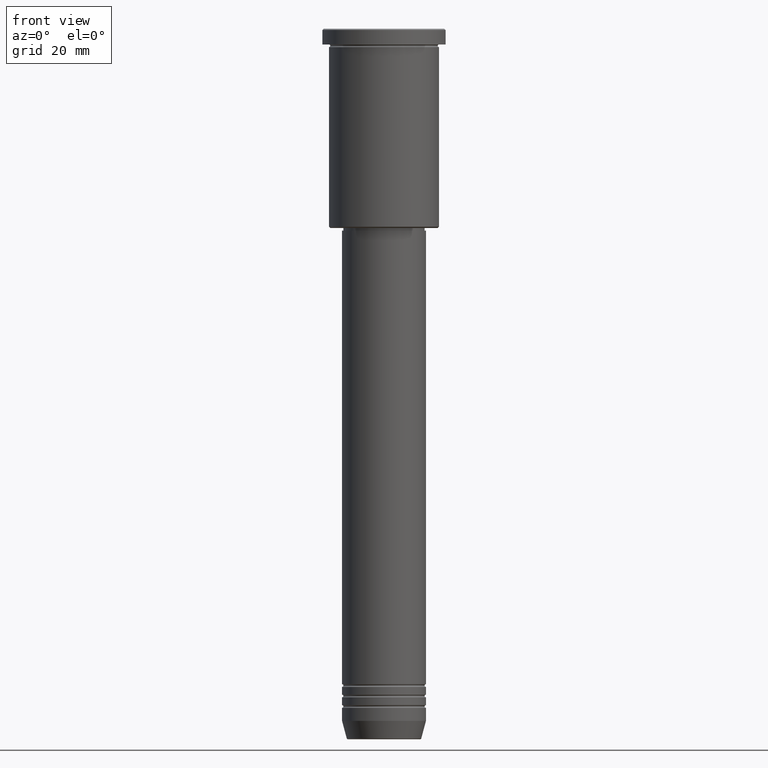
[diagram: clean part render]
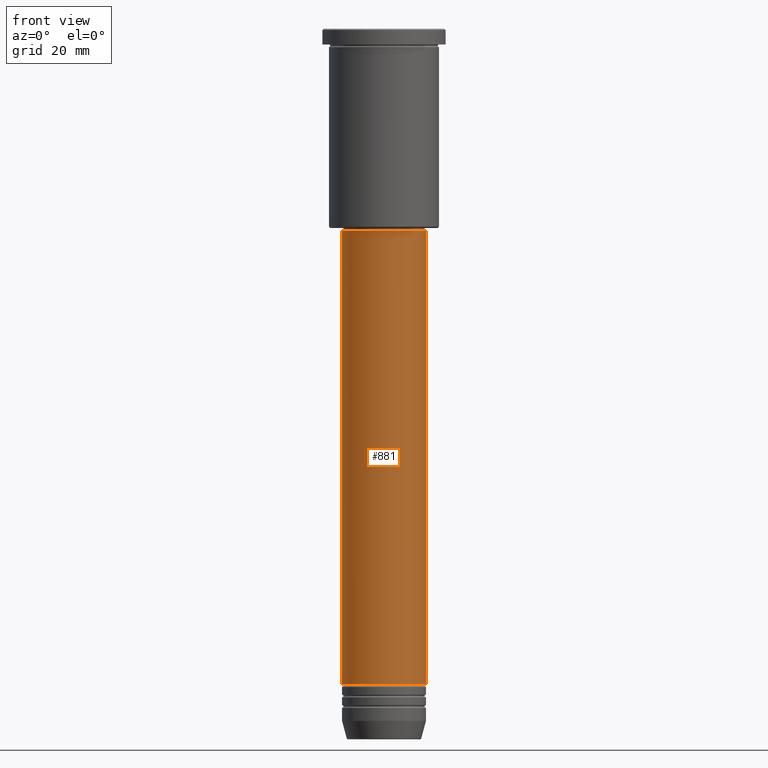
[diagram: same view with one face highlighted and labeled with its STEP entity id]
A machine part, front view. The second image highlights one B-rep face of the part: STEP entity #881.
In plain terms, the highlighted cylindrical surface (partial cylindrical patch) has radius 16 mm, axis along (-0, -0, 1).
Its self-contained STEP definition (entity closure, byte-faithful):
#33 = DIRECTION ( 'NONE',  ( -0.000000000000000000, -0.000000000000000000, 1.000000000000000000 ) ) ;
#49 = VERTEX_POINT ( 'NONE', #331 ) ;
#53 = DIRECTION ( 'NONE',  ( 1.000000000000000000, 0.000000000000000000, 0.000000000000000000 ) ) ;
#57 = EDGE_CURVE ( 'NONE', #1175, #646, #826, .T. ) ;
#124 = CIRCLE ( 'NONE', #858, 16.00000000000000000 ) ;
#135 = CARTESIAN_POINT ( 'NONE',  ( 0.000000000000000000, 0.000000000000000000, -249.9999999999999147 ) ) ;
#163 = LINE ( 'NONE', #371, #300 ) ;
#244 = DIRECTION ( 'NONE',  ( -0.000000000000000000, -0.000000000000000000, 1.000000000000000000 ) ) ;
#295 = CARTESIAN_POINT ( 'NONE',  ( 16.00000000000000355, 0.000000000000000000, -77.00000000000004263 ) ) ;
#300 = VECTOR ( 'NONE', #244, 1000.000000000000000 ) ;
#328 = DIRECTION ( 'NONE',  ( 1.000000000000000000, 0.000000000000000000, 0.000000000000000000 ) ) ;
#331 = CARTESIAN_POINT ( 'NONE',  ( 16.00000000000000000, 0.000000000000000000, -249.9999999999999147 ) ) ;
#335 = CYLINDRICAL_SURFACE ( 'NONE', #1103, 16.00000000000000000 ) ;
#353 = DIRECTION ( 'NONE',  ( 1.000000000000000000, 0.000000000000000000, 0.000000000000000000 ) ) ;
#371 = CARTESIAN_POINT ( 'NONE',  ( 16.00000000000000000, 0.000000000000000000, 0.000000000000000000 ) ) ;
#388 = ORIENTED_EDGE ( 'NONE', *, *, #1075, .T. ) ;
#425 = ORIENTED_EDGE ( 'NONE', *, *, #965, .F. ) ;
#523 = ORIENTED_EDGE ( 'NONE', *, *, #57, .F. ) ;
#567 = VECTOR ( 'NONE', #639, 1000.000000000000000 ) ;
#639 = DIRECTION ( 'NONE',  ( -0.000000000000000000, -0.000000000000000000, 1.000000000000000000 ) ) ;
#646 = VERTEX_POINT ( 'NONE', #727 ) ;
#647 = CARTESIAN_POINT ( 'NONE',  ( -16.00000000000000000, 1.959434878635765131E-15, -249.9999999999999147 ) ) ;
#727 = CARTESIAN_POINT ( 'NONE',  ( -16.00000000000000355, 1.959434878635765526E-15, -77.00000000000004263 ) ) ;
#766 = VERTEX_POINT ( 'NONE', #295 ) ;
#799 = CIRCLE ( 'NONE', #1015, 16.00000000000000355 ) ;
#826 = LINE ( 'NONE', #1173, #567 ) ;
#858 = AXIS2_PLACEMENT_3D ( 'NONE', #135, #876, #53 ) ;
#876 = DIRECTION ( 'NONE',  ( -0.000000000000000000, -0.000000000000000000, 1.000000000000000000 ) ) ;
#881 = ADVANCED_FACE ( 'NONE', ( #953 ), #335, .T. ) ;
#941 = EDGE_CURVE ( 'NONE', #1175, #49, #124, .T. ) ;
#953 = FACE_OUTER_BOUND ( 'NONE', #1034, .T. ) ;
#962 = ORIENTED_EDGE ( 'NONE', *, *, #941, .T. ) ;
#965 = EDGE_CURVE ( 'NONE', #646, #766, #799, .T. ) ;
#1015 = AXIS2_PLACEMENT_3D ( 'NONE', #1165, #1077, #353 ) ;
#1034 = EDGE_LOOP ( 'NONE', ( #523, #962, #388, #425 ) ) ;
#1075 = EDGE_CURVE ( 'NONE', #49, #766, #163, .T. ) ;
#1077 = DIRECTION ( 'NONE',  ( -0.000000000000000000, -0.000000000000000000, 1.000000000000000000 ) ) ;
#1103 = AXIS2_PLACEMENT_3D ( 'NONE', #1141, #33, #328 ) ;
#1141 = CARTESIAN_POINT ( 'NONE',  ( 0.000000000000000000, 0.000000000000000000, 0.000000000000000000 ) ) ;
#1165 = CARTESIAN_POINT ( 'NONE',  ( 0.000000000000000000, 0.000000000000000000, -77.00000000000004263 ) ) ;
#1173 = CARTESIAN_POINT ( 'NONE',  ( -16.00000000000000000, 1.959434878635765131E-15, 0.000000000000000000 ) ) ;
#1175 = VERTEX_POINT ( 'NONE', #647 ) ;